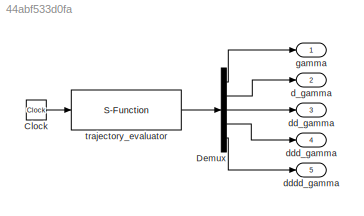
MODEL slx_44abf533d0fa
KIND model
CONFIG AbsTol = auto
CONFIG FixedStep = auto
CONFIG MaxStep = auto
CONFIG MinStep = auto
CONFIG RelTol = 1e-3
CONFIG SampleTimeConstraint = Unconstrained
CONFIG Solver = VariableStepAuto
CONFIG SolverMode = Auto
CONFIG SolverName = VariableStepAuto
CONFIG StartTime = 0.0
CONFIG StopTime = 30.0
BLOCK [Clock] Clock
BLOCK [Demux] Demux
  DisplayOption = bar
  Outputs = [4,4,4,4,4]
  Ports = [1, 5]
BLOCK [Outport] d_gamma
  IconDisplay = Port number
  Port = 2
BLOCK [Outport] dd_gamma
  IconDisplay = Port number
  Port = 3
BLOCK [Outport] ddd_gamma
  IconDisplay = Port number
  Port = 4
BLOCK [Outport] dddd_gamma
  IconDisplay = Port number
  Port = 5
BLOCK [Outport] gamma
  IconDisplay = Port number
BLOCK [S-Function] trajectory_evaluator
  EnableBusSupport = off
  FunctionName = eval_traj_sfunc
  Parameters = trajectory
  Ports = [1, 1]
  SFunctionDeploymentMode = off
LINE Clock:1 -> trajectory_evaluator:1
LINE Demux:1 -> gamma:1
LINE Demux:2 -> d_gamma:1
LINE Demux:3 -> dd_gamma:1
LINE Demux:4 -> ddd_gamma:1
LINE Demux:5 -> dddd_gamma:1
LINE trajectory_evaluator:1 -> Demux:1
